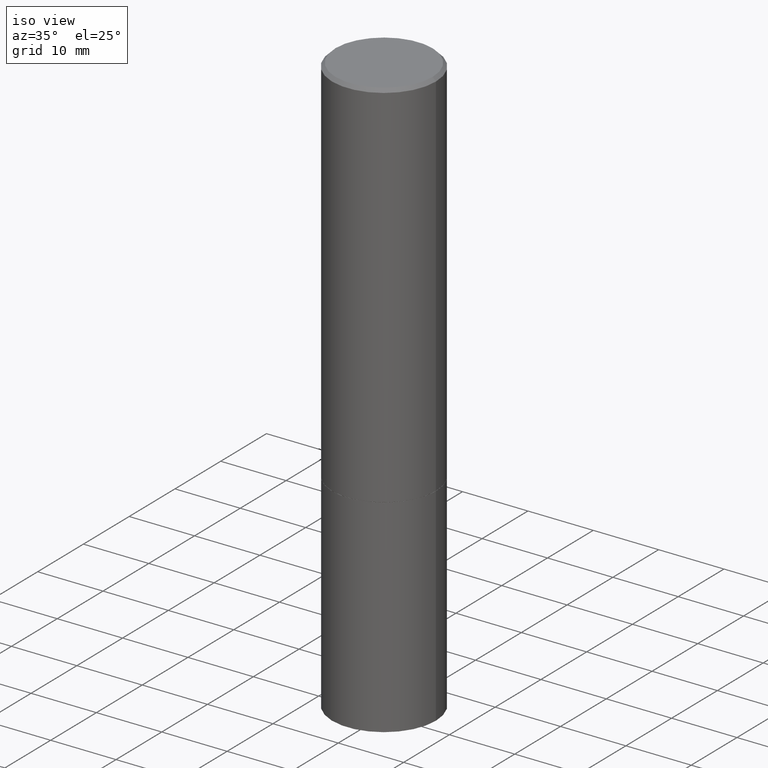
[diagram: clean part render]
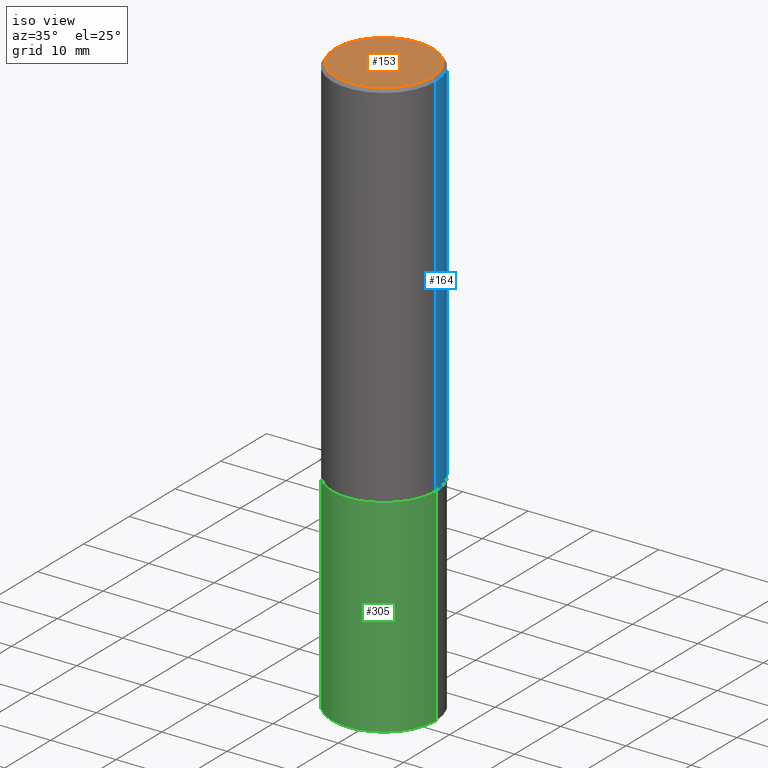
[diagram: same view with three faces highlighted in distinct colors, each labeled with its STEP entity id]
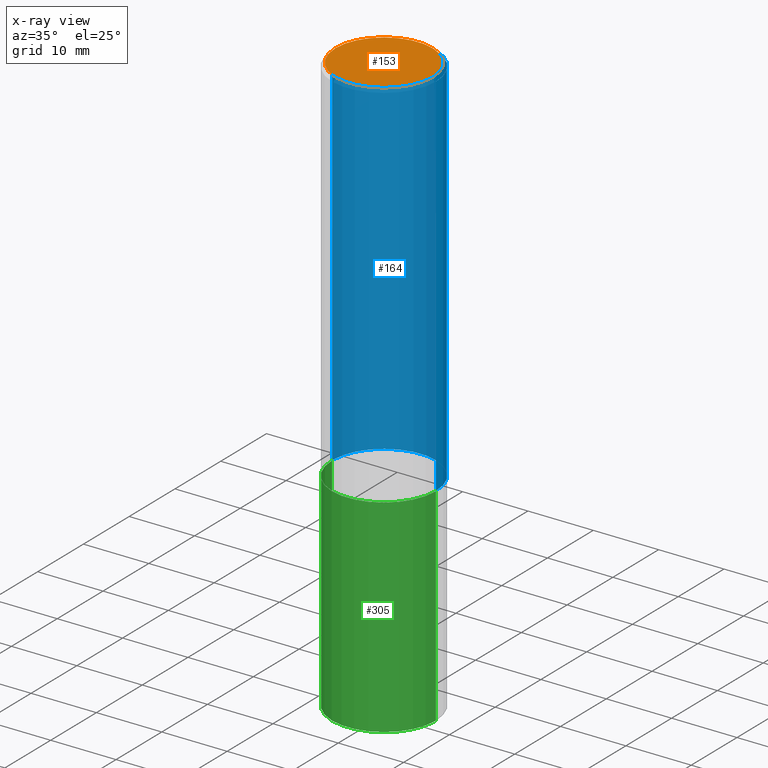
[diagram: x-ray of the same camera — body ghosted, the three highlighted faces saturated]
A machine part, iso view with three faces highlighted in distinct colors.
The next image is the same camera in x-ray (body ghosted, the three faces saturated) — at least one of them is partly hidden behind the body in this view.
Their STEP definitions:

[orange] entity #153 — the highlighted planar face has unit normal (0, -0, -1).
#8 = CARTESIAN_POINT ( 'NONE',  ( 0.000000000000000000, 0.000000000000000000, 0.000000000000000000 ) ) ;
#12 = DIRECTION ( 'NONE',  ( 2.438088387897960049E-29, -3.491481338843145188E-15, -1.000000000000000000 ) ) ;
#32 = CIRCLE ( 'NONE', #45, 0.2924999999999998712 ) ;
#40 = CARTESIAN_POINT ( 'NONE',  ( -0.2924999999999998712, 2.077431396611663005E-15, -1.440630921208799661E-29 ) ) ;
#45 = AXIS2_PLACEMENT_3D ( 'NONE', #76, #234, #79 ) ;
#58 = PLANE ( 'NONE',  #212 ) ;
#60 = ORIENTED_EDGE ( 'NONE', *, *, #113, .T. ) ;
#76 = CARTESIAN_POINT ( 'NONE',  ( 0.000000000000000000, 0.000000000000000000, 0.000000000000000000 ) ) ;
#79 = DIRECTION ( 'NONE',  ( 1.000000000000000000, -6.982962677686266711E-15, 4.876176775795935232E-29 ) ) ;
#113 = EDGE_CURVE ( 'NONE', #285, #179, #232, .T. ) ;
#137 = AXIS2_PLACEMENT_3D ( 'NONE', #8, #186, #280 ) ;
#144 = ORIENTED_EDGE ( 'NONE', *, *, #217, .T. ) ;
#150 = CARTESIAN_POINT ( 'NONE',  ( 2.042516583223231751E-15, 0.2924999999999998712, -1.021258291611619622E-15 ) ) ;
#153 = ADVANCED_FACE ( 'NONE', ( #303 ), #58, .F. ) ;
#159 = DIRECTION ( 'NONE',  ( -1.000000000000000000, 6.982962677686265922E-15, -4.876176775795935793E-29 ) ) ;
#179 = VERTEX_POINT ( 'NONE', #40 ) ;
#186 = DIRECTION ( 'NONE',  ( -2.445468806185136597E-29, 3.491481338843145583E-15, 1.000000000000000000 ) ) ;
#212 = AXIS2_PLACEMENT_3D ( 'NONE', #150, #12, #159 ) ;
#217 = EDGE_CURVE ( 'NONE', #179, #285, #32, .T. ) ;
#229 = CARTESIAN_POINT ( 'NONE',  ( 0.2924999999999998712, -2.110215457714318748E-15, 1.452077414963941102E-29 ) ) ;
#232 = CIRCLE ( 'NONE', #137, 0.2924999999999998712 ) ;
#234 = DIRECTION ( 'NONE',  ( -2.445468806185136597E-29, 3.491481338843145583E-15, 1.000000000000000000 ) ) ;
#280 = DIRECTION ( 'NONE',  ( 1.000000000000000000, -6.982962677686266711E-15, 4.876176775795935232E-29 ) ) ;
#285 = VERTEX_POINT ( 'NONE', #229 ) ;
#297 = EDGE_LOOP ( 'NONE', ( #144, #60 ) ) ;
#303 = FACE_OUTER_BOUND ( 'NONE', #297, .T. ) ;

[blue] entity #164 — the highlighted cylindrical surface (partial cylindrical patch) has radius 7.9375 mm, axis along (-0, 0, 1).
#7 = VECTOR ( 'NONE', #283, 39.37007874015748143 ) ;
#26 = VERTEX_POINT ( 'NONE', #141 ) ;
#34 = CARTESIAN_POINT ( 'NONE',  ( 0.3125000000000000000, -1.003451736783519063E-14, -2.248999999999999666 ) ) ;
#37 = CARTESIAN_POINT ( 'NONE',  ( -0.3124999999999999445, 2.220446049250312686E-15, -1.537167215704657671E-29 ) ) ;
#39 = AXIS2_PLACEMENT_3D ( 'NONE', #61, #182, #220 ) ;
#61 = CARTESIAN_POINT ( 'NONE',  ( 4.890937612370289799E-31, -6.982962677686315028E-17, -0.02000000000000006981 ) ) ;
#71 = DIRECTION ( 'NONE',  ( -2.445468806185136597E-29, 3.491481338843145583E-15, 1.000000000000000000 ) ) ;
#73 = CARTESIAN_POINT ( 'NONE',  ( -0.3124999999999998890, 2.112346210000094260E-15, -0.02000000000000006981 ) ) ;
#93 = CIRCLE ( 'NONE', #39, 0.3124999999999998890 ) ;
#94 = CYLINDRICAL_SURFACE ( 'NONE', #338, 0.3124999999999999445 ) ;
#96 = DIRECTION ( 'NONE',  ( -2.445468806185136877E-29, 3.491481338843145188E-15, 1.000000000000000000 ) ) ;
#100 = DIRECTION ( 'NONE',  ( 1.000000000000000000, -6.982962677686265133E-15, 0.000000000000000000 ) ) ;
#103 = VERTEX_POINT ( 'NONE', #34 ) ;
#105 = LINE ( 'NONE', #200, #7 ) ;
#109 = CIRCLE ( 'NONE', #354, 0.3125000000000000000 ) ;
#114 = EDGE_LOOP ( 'NONE', ( #314, #180, #259, #242 ) ) ;
#128 = DIRECTION ( 'NONE',  ( -2.445468806185136597E-29, 3.491481338843145583E-15, 1.000000000000000000 ) ) ;
#131 = DIRECTION ( 'NONE',  ( 1.000000000000000000, -6.982962677686266711E-15, 4.876176775795936353E-29 ) ) ;
#133 = CARTESIAN_POINT ( 'NONE',  ( 5.499859345110371740E-29, -7.852341531058233864E-15, -2.248999999999999666 ) ) ;
#141 = CARTESIAN_POINT ( 'NONE',  ( 0.3124999999999998890, -2.213735251080466123E-15, -0.02000000000000006981 ) ) ;
#156 = CARTESIAN_POINT ( 'NONE',  ( 0.000000000000000000, 0.000000000000000000, 0.000000000000000000 ) ) ;
#164 = ADVANCED_FACE ( 'NONE', ( #329 ), #94, .T. ) ;
#180 = ORIENTED_EDGE ( 'NONE', *, *, #192, .T. ) ;
#182 = DIRECTION ( 'NONE',  ( -2.445468806185136597E-29, 3.491481338843145583E-15, 1.000000000000000000 ) ) ;
#192 = EDGE_CURVE ( 'NONE', #316, #235, #281, .T. ) ;
#199 = EDGE_CURVE ( 'NONE', #26, #235, #93, .T. ) ;
#200 = CARTESIAN_POINT ( 'NONE',  ( 0.3124999999999999445, -2.182175836776957953E-15, 1.523805242436229795E-29 ) ) ;
#220 = DIRECTION ( 'NONE',  ( 1.000000000000000000, -6.982962677686266711E-15, 0.000000000000000000 ) ) ;
#228 = EDGE_CURVE ( 'NONE', #103, #26, #105, .T. ) ;
#235 = VERTEX_POINT ( 'NONE', #73 ) ;
#242 = ORIENTED_EDGE ( 'NONE', *, *, #228, .F. ) ;
#259 = ORIENTED_EDGE ( 'NONE', *, *, #199, .F. ) ;
#281 = LINE ( 'NONE', #37, #284 ) ;
#283 = DIRECTION ( 'NONE',  ( -2.445468806185136877E-29, 3.491481338843145188E-15, 1.000000000000000000 ) ) ;
#284 = VECTOR ( 'NONE', #96, 39.37007874015748143 ) ;
#286 = CARTESIAN_POINT ( 'NONE',  ( -0.3125000000000000000, -1.740639529667234514E-15, -2.248999999999999666 ) ) ;
#314 = ORIENTED_EDGE ( 'NONE', *, *, #335, .T. ) ;
#316 = VERTEX_POINT ( 'NONE', #286 ) ;
#329 = FACE_OUTER_BOUND ( 'NONE', #114, .T. ) ;
#335 = EDGE_CURVE ( 'NONE', #103, #316, #109, .T. ) ;
#338 = AXIS2_PLACEMENT_3D ( 'NONE', #156, #128, #131 ) ;
#354 = AXIS2_PLACEMENT_3D ( 'NONE', #133, #71, #100 ) ;

[green] entity #305 — the highlighted cylindrical surface (partial cylindrical patch) has radius 7.9375 mm, axis along (-0, 0, 1).
#1 = VECTOR ( 'NONE', #216, 39.37007874015748143 ) ;
#4 = VERTEX_POINT ( 'NONE', #323 ) ;
#5 = ORIENTED_EDGE ( 'NONE', *, *, #88, .F. ) ;
#6 = EDGE_CURVE ( 'NONE', #4, #84, #361, .T. ) ;
#9 = CARTESIAN_POINT ( 'NONE',  ( 0.3125000000000000000, -1.440236052272796769E-14, -3.500000000000000000 ) ) ;
#16 = FACE_OUTER_BOUND ( 'NONE', #292, .T. ) ;
#21 = DIRECTION ( 'NONE',  ( -2.445468806185136597E-29, 3.491481338843145583E-15, 1.000000000000000000 ) ) ;
#22 = CYLINDRICAL_SURFACE ( 'NONE', #257, 0.3125000000000000000 ) ;
#33 = VERTEX_POINT ( 'NONE', #263 ) ;
#41 = LINE ( 'NONE', #183, #1 ) ;
#42 = CARTESIAN_POINT ( 'NONE',  ( 0.3125000000000000000, -2.182175836776958347E-15, 1.523805242436230075E-29 ) ) ;
#44 = VECTOR ( 'NONE', #110, 39.37007874015748143 ) ;
#46 = CARTESIAN_POINT ( 'NONE',  ( 5.502304813916556222E-29, -7.855833012397076871E-15, -2.249999999999999556 ) ) ;
#75 = AXIS2_PLACEMENT_3D ( 'NONE', #46, #190, #195 ) ;
#84 = VERTEX_POINT ( 'NONE', #9 ) ;
#88 = EDGE_CURVE ( 'NONE', #4, #33, #41, .T. ) ;
#91 = CARTESIAN_POINT ( 'NONE',  ( 0.3125000000000000000, -1.003800884917403522E-14, -2.249999999999999556 ) ) ;
#110 = DIRECTION ( 'NONE',  ( -2.445468806185136877E-29, 3.491481338843145188E-15, 1.000000000000000000 ) ) ;
#118 = VERTEX_POINT ( 'NONE', #91 ) ;
#136 = CARTESIAN_POINT ( 'NONE',  ( 0.000000000000000000, 0.000000000000000000, 0.000000000000000000 ) ) ;
#149 = ORIENTED_EDGE ( 'NONE', *, *, #254, .T. ) ;
#173 = CARTESIAN_POINT ( 'NONE',  ( 8.559140821647976968E-29, -1.222018468595100934E-14, -3.500000000000000000 ) ) ;
#183 = CARTESIAN_POINT ( 'NONE',  ( -0.3125000000000000000, 2.220446049250313081E-15, -1.537167215704658232E-29 ) ) ;
#190 = DIRECTION ( 'NONE',  ( -2.445468806185136597E-29, 3.491481338843145583E-15, 1.000000000000000000 ) ) ;
#195 = DIRECTION ( 'NONE',  ( 1.000000000000000000, -6.982962677686269077E-15, 0.000000000000000000 ) ) ;
#216 = DIRECTION ( 'NONE',  ( -2.445468806185136877E-29, 3.491481338843145188E-15, 1.000000000000000000 ) ) ;
#227 = DIRECTION ( 'NONE',  ( 1.000000000000000000, -6.982962677686266711E-15, 4.876176775795936353E-29 ) ) ;
#243 = DIRECTION ( 'NONE',  ( 1.000000000000000000, -6.982962677686269077E-15, 0.000000000000000000 ) ) ;
#254 = EDGE_CURVE ( 'NONE', #84, #118, #333, .T. ) ;
#257 = AXIS2_PLACEMENT_3D ( 'NONE', #136, #21, #227 ) ;
#263 = CARTESIAN_POINT ( 'NONE',  ( -0.3125000000000000000, -7.817562799923730025E-15, -2.249999999999999556 ) ) ;
#268 = DIRECTION ( 'NONE',  ( -2.445468806185136597E-29, 3.491481338843145583E-15, 1.000000000000000000 ) ) ;
#270 = AXIS2_PLACEMENT_3D ( 'NONE', #173, #268, #243 ) ;
#292 = EDGE_LOOP ( 'NONE', ( #5, #324, #149, #365 ) ) ;
#305 = ADVANCED_FACE ( 'NONE', ( #16 ), #22, .T. ) ;
#321 = CIRCLE ( 'NONE', #75, 0.3125000000000000000 ) ;
#323 = CARTESIAN_POINT ( 'NONE',  ( -0.3125000000000000000, -7.817562799923730025E-15, -3.500000000000000000 ) ) ;
#324 = ORIENTED_EDGE ( 'NONE', *, *, #6, .T. ) ;
#333 = LINE ( 'NONE', #42, #44 ) ;
#343 = EDGE_CURVE ( 'NONE', #33, #118, #321, .T. ) ;
#361 = CIRCLE ( 'NONE', #270, 0.3125000000000000000 ) ;
#365 = ORIENTED_EDGE ( 'NONE', *, *, #343, .F. ) ;